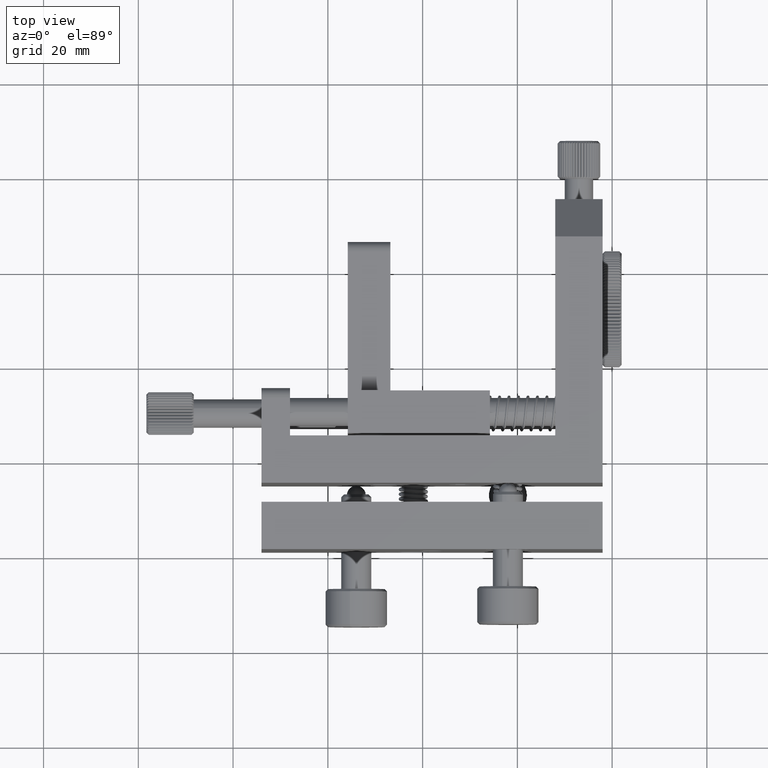
[diagram: clean part render]
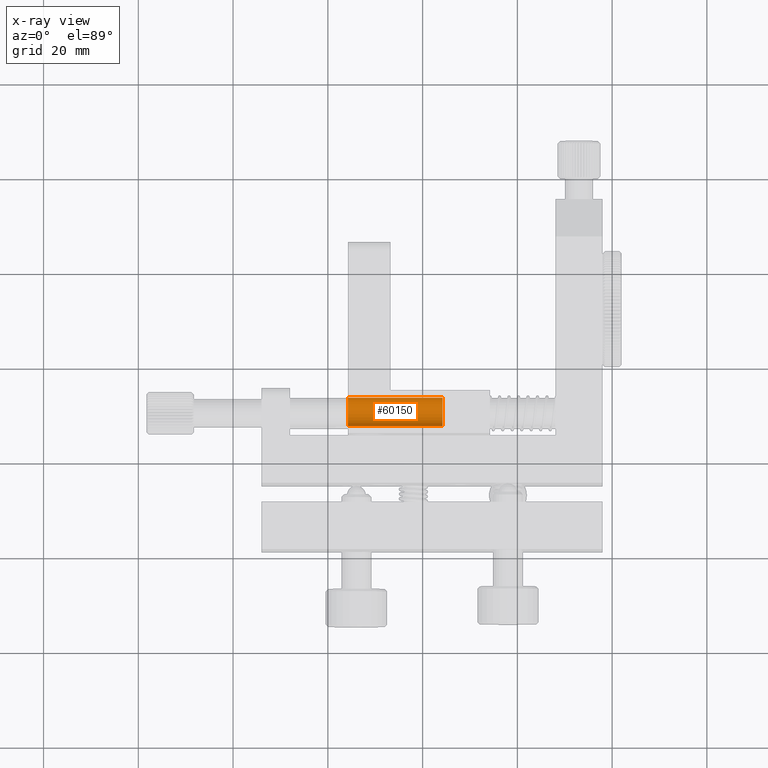
[diagram: x-ray — body ghosted, one internal face saturated and labeled with its STEP entity id]
A machine part, top view, then the same camera in x-ray: the body is ghosted and one INTERNAL B-rep face — a face not visible from any outside direction — is saturated and labeled: STEP entity #60150.
In plain terms, the highlighted cylindrical surface (edge-blend (fillet) strip) has radius 3 mm, axis along (-1, -0, -0).
Its self-contained STEP definition (entity closure, byte-faithful):
#1651 = CARTESIAN_POINT ( 'NONE',  ( 14.20308334069198300, 7.000000000000004400, 17.50000000000001400 ) ) ;
#3581 = CYLINDRICAL_SURFACE ( 'NONE', #58246, 2.999999999999999100 ) ;
#6366 = LINE ( 'NONE', #1651, #49250 ) ;
#6766 = DIRECTION ( 'NONE',  ( 0.0000000000000000000, -1.000000000000000000, 0.0000000000000000000 ) ) ;
#8654 = CARTESIAN_POINT ( 'NONE',  ( 4.203083340691981600, 13.00000000000001600, 17.50000000000000700 ) ) ;
#10299 = DIRECTION ( 'NONE',  ( -1.000000000000000000, -1.224606353822375000E-016, -2.766582776912872900E-016 ) ) ;
#11022 = VERTEX_POINT ( 'NONE', #45589 ) ;
#11749 = CARTESIAN_POINT ( 'NONE',  ( 4.203083340691981600, 10.00000000000001800, 17.50000000000001400 ) ) ;
#12010 = ORIENTED_EDGE ( 'NONE', *, *, #15300, .T. ) ;
#15220 = DIRECTION ( 'NONE',  ( 0.0000000000000000000, 1.000000000000000000, 0.0000000000000000000 ) ) ;
#15300 = EDGE_CURVE ( 'NONE', #52595, #31373, #52371, .T. ) ;
#20459 = CARTESIAN_POINT ( 'NONE',  ( -15.79691665930804600, 7.000000000000000900, 17.50000000000000700 ) ) ;
#20615 = CARTESIAN_POINT ( 'NONE',  ( 14.20308334069198300, 13.00000000000000400, 17.50000000000001400 ) ) ;
#20675 = DIRECTION ( 'NONE',  ( -1.000000000000000000, -1.224606353822375000E-016, -2.766582776912872900E-016 ) ) ;
#21283 = DIRECTION ( 'NONE',  ( -1.000000000000000000, -1.224606353822375000E-016, -2.766582776912872900E-016 ) ) ;
#23096 = EDGE_LOOP ( 'NONE', ( #30081, #55700, #46073, #12010 ) ) ;
#23540 = EDGE_CURVE ( 'NONE', #11022, #38060, #28360, .T. ) ;
#27251 = EDGE_CURVE ( 'NONE', #38060, #52595, #59206, .T. ) ;
#28360 = CIRCLE ( 'NONE', #56044, 2.999999999999999100 ) ;
#30081 = ORIENTED_EDGE ( 'NONE', *, *, #33713, .F. ) ;
#31373 = VERTEX_POINT ( 'NONE', #20459 ) ;
#31557 = DIRECTION ( 'NONE',  ( 0.0000000000000000000, 1.000000000000000000, 0.0000000000000000000 ) ) ;
#33713 = EDGE_CURVE ( 'NONE', #11022, #31373, #6366, .T. ) ;
#34561 = CARTESIAN_POINT ( 'NONE',  ( -15.79691665930804600, 13.00000000000000000, 17.50000000000000700 ) ) ;
#37297 = AXIS2_PLACEMENT_3D ( 'NONE', #56429, #41820, #31557 ) ;
#38060 = VERTEX_POINT ( 'NONE', #8654 ) ;
#40165 = FACE_OUTER_BOUND ( 'NONE', #23096, .T. ) ;
#41820 = DIRECTION ( 'NONE',  ( -1.000000000000000000, -1.224606353822375000E-016, -2.766582776912872900E-016 ) ) ;
#44377 = VECTOR ( 'NONE', #10299, 1000.000000000000000 ) ;
#45047 = CARTESIAN_POINT ( 'NONE',  ( 14.20308334069198300, 10.00000000000000400, 17.50000000000001400 ) ) ;
#45589 = CARTESIAN_POINT ( 'NONE',  ( 4.203083340691981600, 7.000000000000018700, 17.50000000000000700 ) ) ;
#46073 = ORIENTED_EDGE ( 'NONE', *, *, #27251, .T. ) ;
#49250 = VECTOR ( 'NONE', #21283, 1000.000000000000000 ) ;
#52371 = CIRCLE ( 'NONE', #37297, 2.999999999999999100 ) ;
#52595 = VERTEX_POINT ( 'NONE', #34561 ) ;
#55700 = ORIENTED_EDGE ( 'NONE', *, *, #23540, .T. ) ;
#56044 = AXIS2_PLACEMENT_3D ( 'NONE', #11749, #60862, #6766 ) ;
#56429 = CARTESIAN_POINT ( 'NONE',  ( -15.79691665930804600, 10.00000000000000000, 17.50000000000000700 ) ) ;
#58246 = AXIS2_PLACEMENT_3D ( 'NONE', #45047, #20675, #15220 ) ;
#59206 = LINE ( 'NONE', #20615, #44377 ) ;
#60150 = ADVANCED_FACE ( 'NONE', ( #40165 ), #3581, .F. ) ;
#60862 = DIRECTION ( 'NONE',  ( 1.000000000000000000, 1.224606353822375000E-016, 2.766582776912872900E-016 ) ) ;